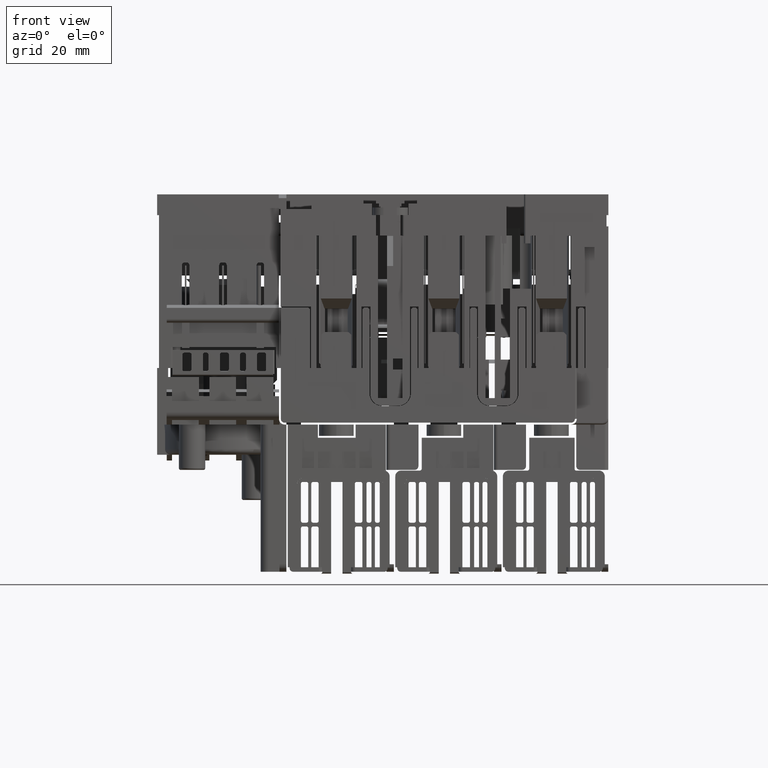
[diagram: clean part render]
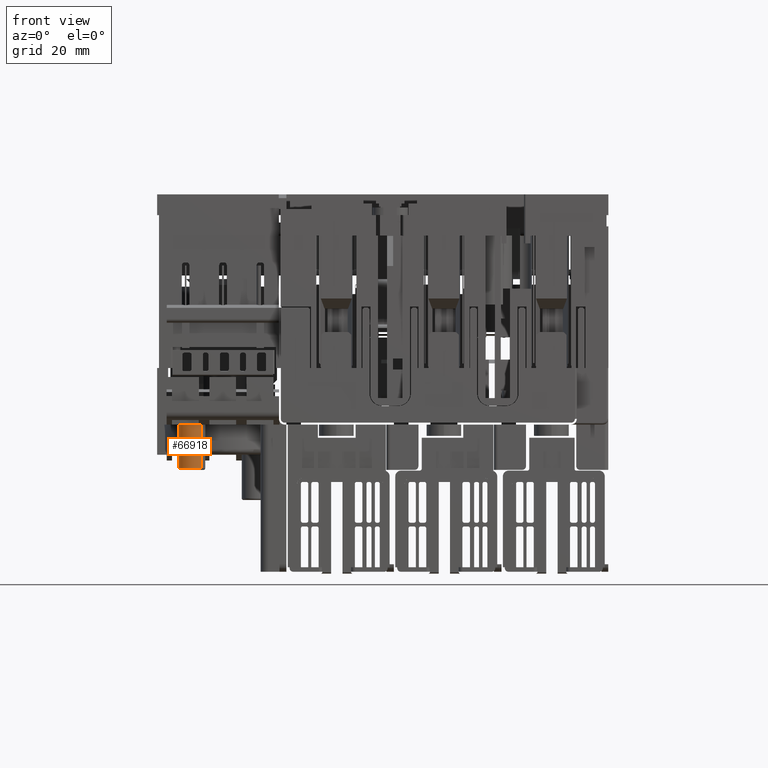
[diagram: same view with one face highlighted and labeled with its STEP entity id]
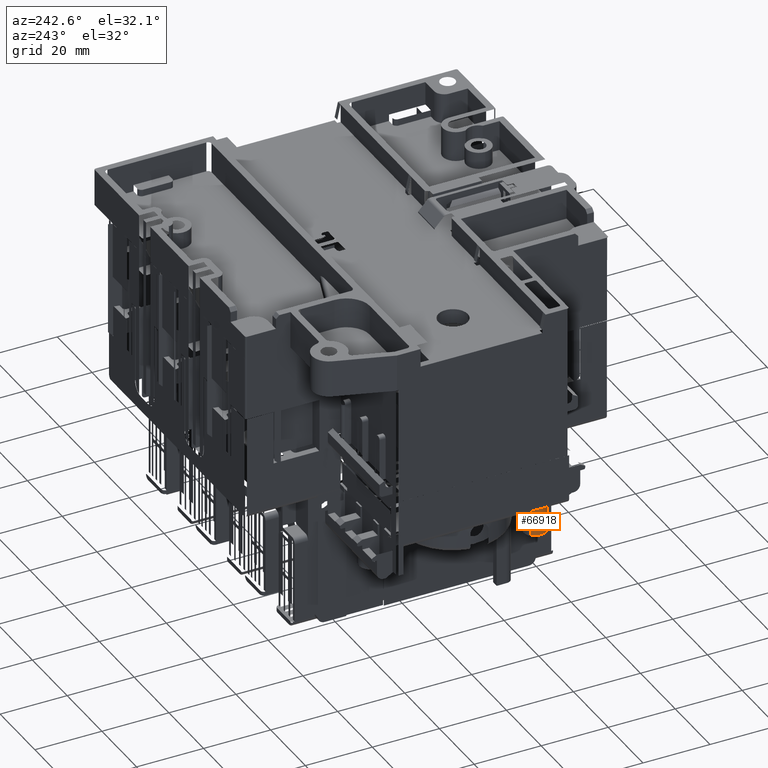
[diagram: same view with one face highlighted and labeled with its STEP entity id]
A machine part, front view. The second image highlights one B-rep face of the part: STEP entity #66918.
A second angle (auxiliary view) of the same face is appended — the face is thin or edge-on in the first view.
In plain terms, the highlighted cylindrical surface (edge-blend (fillet) strip) has radius 3.5 mm, axis along (-0, -0, 1).
Its self-contained STEP definition (entity closure, byte-faithful):
#32755=CARTESIAN_POINT('',(9.320154298104E1,3.943811063946E2,
-7.550304268061E1));
#32756=DIRECTION('',(1.887739998093E-6,4.229997330178E-8,-9.999999999982E-1));
#32757=DIRECTION('',(7.071067810692E-1,-7.071067813027E-1,1.304923155811E-6));
#32758=AXIS2_PLACEMENT_3D('',#32755,#32756,#32757);
#39317=CARTESIAN_POINT('',(9.567584296589E1,3.919061655320E2,
-8.700303327834E1));
#39330=CARTESIAN_POINT('',(9.072622421951E1,3.968560405963E2,
-8.700304271852E1));
#39389=CARTESIAN_POINT('',(9.567584296589E1,3.919061655320E2,
-8.700303327834E1));
#39390=CARTESIAN_POINT('',(9.544022184263E1,3.916706026767E2,
-8.700303373309E1));
#39391=CARTESIAN_POINT('',(9.490170312125E1,3.912669057277E2,
-8.700303412326E1));
#39392=CARTESIAN_POINT('',(9.395538875855E1,3.909142523072E2,
-8.700303618320E1));
#39393=CARTESIAN_POINT('',(9.294823146040E1,3.908422572722E2,
-8.700303801824E1));
#39394=CARTESIAN_POINT('',(9.196153630767E1,3.910569666923E2,
-8.700303989019E1));
#39395=CARTESIAN_POINT('',(9.107530328638E1,3.915409312560E2,
-8.700304153832E1));
#39396=CARTESIAN_POINT('',(9.036130171010E1,3.922549622970E2,
-8.700304285504E1));
#39397=CARTESIAN_POINT('',(8.987736867931E1,3.931412212437E2,
-8.700304373917E1));
#39398=CARTESIAN_POINT('',(8.966272126905E1,3.941279020573E2,
-8.700304407123E1));
#39399=CARTESIAN_POINT('',(8.973467899968E1,3.951351434982E2,
-8.700304401031E1));
#39400=CARTESIAN_POINT('',(9.008766693332E1,3.960811179552E2,
-8.700304286527E1));
#39401=CARTESIAN_POINT('',(9.049065159017E1,3.966204292451E2,
-8.700304317319E1));
#39402=CARTESIAN_POINT('',(9.072622421951E1,3.968560405963E2,
-8.700304271852E1));
#39404=DIRECTION('',(3.526034872003E-5,-8.695947736034E-6,9.999999993405E-1));
#39405=VECTOR('',#39404,1.149999354392E1);
#39406=CARTESIAN_POINT('',(9.072622421951E1,3.968560405963E2,
-8.700304271852E1));
#39407=LINE('',#39406,#39405);
#39408=DIRECTION('',(-4.496301635001E-5,-9.093141929260E-7,-9.999999989888E-1));
#39409=VECTOR('',#39408,1.149999167147E1);
#39410=CARTESIAN_POINT('',(9.567636004020E1,3.919061759891E2,
-7.550304161850E1));
#39411=LINE('',#39410,#39409);
#48726=CARTESIAN_POINT('',(9.072666924624E1,3.968559801286E2,
-7.550305332300E1));
#48727=CARTESIAN_POINT('',(9.567641671502E1,3.919062326598E2,
-7.550304418853E1));
#48728=VERTEX_POINT('',#48726);
#48729=VERTEX_POINT('',#48727);
#49044=VERTEX_POINT('',#39317);
#49045=VERTEX_POINT('',#39330);
#66907=CARTESIAN_POINT('',(9.320156514930E1,3.943811068913E2,
-8.724632158662E1));
#66908=DIRECTION('',(-1.887739998093E-6,-4.229997330178E-8,9.999999999982E-1));
#66909=DIRECTION('',(-6.613273636864E-1,7.500974057002E-1,-1.216685016032E-6));
#66910=AXIS2_PLACEMENT_3D('',#66907,#66908,#66909);
#66911=CYLINDRICAL_SURFACE('',#66910,3.499999999677E0);
#66912=ORIENTED_EDGE('',*,*,#66901,.T.);
#66913=ORIENTED_EDGE('',*,*,#66857,.T.);
#66914=ORIENTED_EDGE('',*,*,#61997,.F.);
#66915=ORIENTED_EDGE('',*,*,#66854,.T.);
#66916=EDGE_LOOP('',(#66912,#66913,#66914,#66915));
#66917=FACE_OUTER_BOUND('',#66916,.F.);
#66918=ADVANCED_FACE('',(#66917),#66911,.T.);
#32759=CIRCLE('',#32758,3.499999999677E0);
#39403=B_SPLINE_CURVE_WITH_KNOTS('',3,(#39389,#39390,#39391,#39392,#39393,
#39394,#39395,#39396,#39397,#39398,#39399,#39400,#39401,#39402),.UNSPECIFIED.,
.F.,.F.,(4,1,1,1,1,1,1,1,1,1,1,4),(0.E0,9.090909090909E-2,1.818181818182E-1,
2.727272727273E-1,3.636363636364E-1,4.545454545455E-1,5.454545454545E-1,
6.363636363636E-1,7.272727272727E-1,8.181818181818E-1,9.090909090909E-1,1.E0),
.UNSPECIFIED.);
#61997=EDGE_CURVE('',#48729,#48728,#32759,.T.);
#66854=EDGE_CURVE('',#48729,#49044,#39411,.T.);
#66857=EDGE_CURVE('',#49045,#48728,#39407,.T.);
#66901=EDGE_CURVE('',#49044,#49045,#39403,.T.);